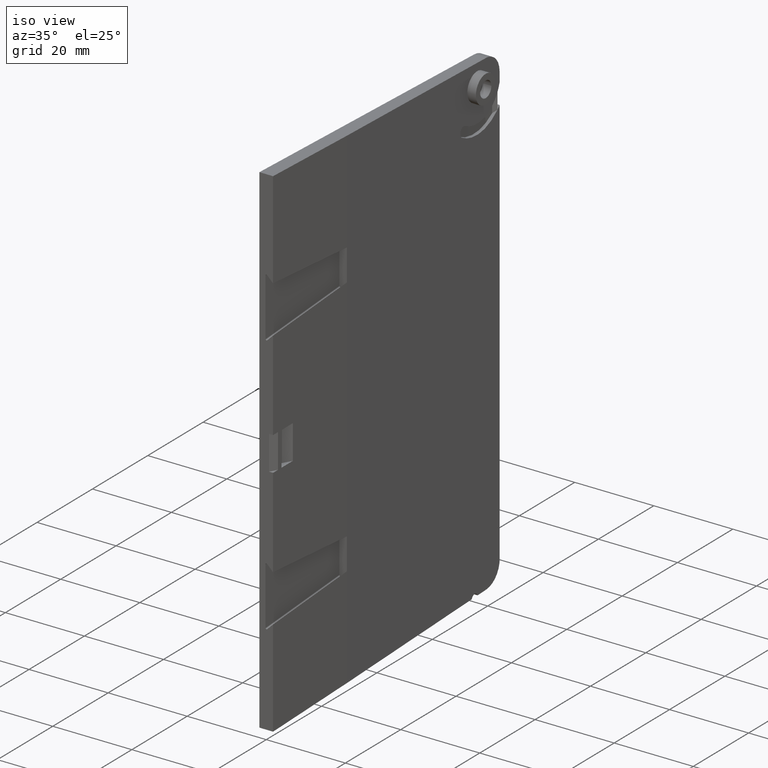
[diagram: clean part render]
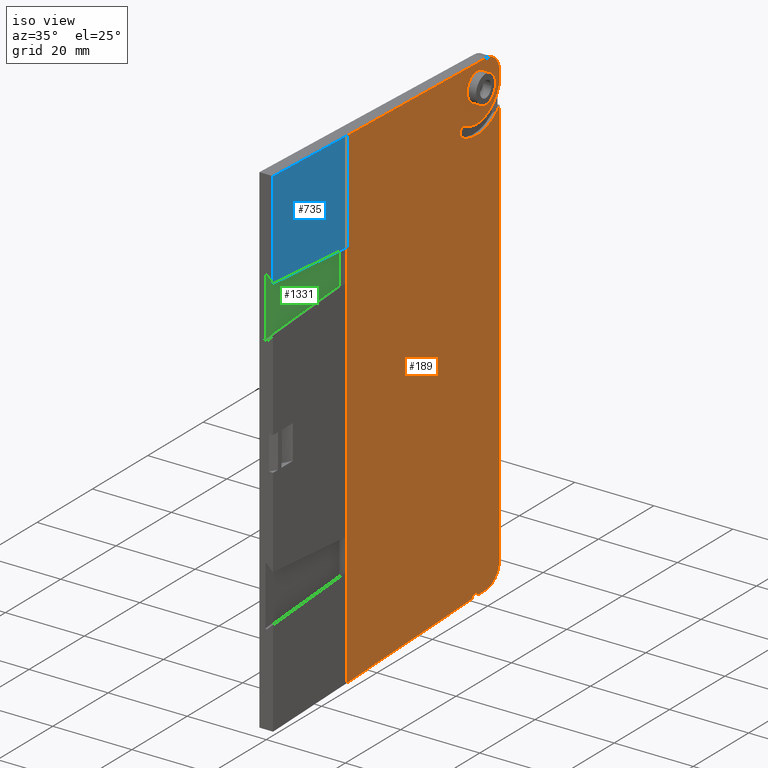
[diagram: same view with three faces highlighted in distinct colors, each labeled with its STEP entity id]
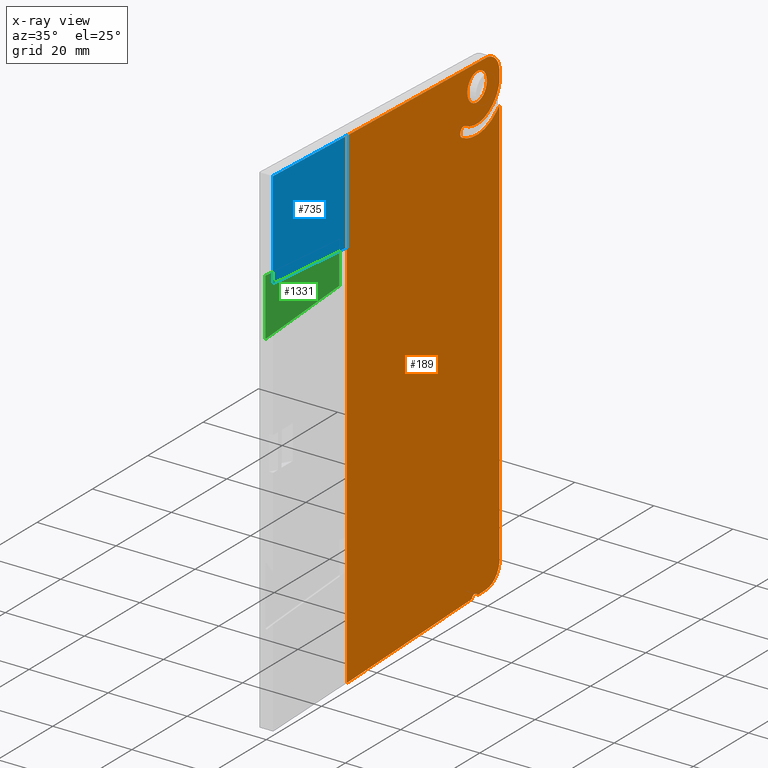
[diagram: x-ray of the same camera — body ghosted, the three highlighted faces saturated]
A machine part, iso view with three faces highlighted in distinct colors.
The next image is the same camera in x-ray (body ghosted, the three faces saturated) — at least one of them is partly hidden behind the body in this view.
Their STEP definitions:

[orange] entity #189 — the highlighted planar face has unit normal (-1, -0.0087, 0).
#2 = CARTESIAN_POINT ( 'NONE',  ( 0.04888656661871314300, 3.240182530498239000, 1.883828164917966700 ) ) ;
#3 = CARTESIAN_POINT ( 'NONE',  ( 0.05309887324728002800, 2.757499999999999400, 1.893881489732213200 ) ) ;
#20 = ORIENTED_EDGE ( 'NONE', *, *, #159, .F. ) ;
#22 = VECTOR ( 'NONE', #572, 39.37007874015748100 ) ;
#27 = EDGE_CURVE ( 'NONE', #1263, #976, #248, .T. ) ;
#29 = EDGE_CURVE ( 'NONE', #1047, #997, #347, .T. ) ;
#31 = VECTOR ( 'NONE', #567, 39.37007874015748100 ) ;
#34 = EDGE_LOOP ( 'NONE', ( #20 ) ) ;
#37 = CARTESIAN_POINT ( 'NONE',  ( 0.05048535175974582000, 3.056979899340500400, 2.393247909594224100 ) ) ;
#42 = DIRECTION ( 'NONE',  ( 0.0000000000000000000, 0.0000000000000000000, -1.000000000000000000 ) ) ;
#43 = CARTESIAN_POINT ( 'NONE',  ( 0.05309887324728002800, 2.757499999999999400, 1.893881489732213200 ) ) ;
#45 = CARTESIAN_POINT ( 'NONE',  ( 0.06800000000000006000, 1.049999999999999600, -1.142821581847729600 ) ) ;
#65 = EDGE_CURVE ( 'NONE', #494, #663, #1241, .T. ) ;
#67 = CARTESIAN_POINT ( 'NONE',  ( 0.04907205255496616100, 3.218927947445035200, 1.863326705647713900 ) ) ;
#74 =( BOUNDED_CURVE ( )  B_SPLINE_CURVE ( 3, ( #117, #113, #116, #118 ),
 .UNSPECIFIED., .F., .T. ) 
 B_SPLINE_CURVE_WITH_KNOTS ( ( 4, 4 ),
 ( 2.641205444217904500, 2.896641837762365500 ),
 .UNSPECIFIED. ) 
 CURVE ( )  GEOMETRIC_REPRESENTATION_ITEM ( )  RATIONAL_B_SPLINE_CURVE ( ( 1.000000000000000000, 0.9945700744788847900, 0.9945700744788847900, 1.000000000000000000 ) ) 
 REPRESENTATION_ITEM ( '' )  );
#79 = CARTESIAN_POINT ( 'NONE',  ( 0.04990887526799426400, 3.123037562361591100, 1.847913873380904200 ) ) ;
#81 = CARTESIAN_POINT ( 'NONE',  ( 0.05033883485180322400, 3.073769074042760800, 1.730274622845669800 ) ) ;
#93 = VERTEX_POINT ( 'NONE', #887 ) ;
#113 = CARTESIAN_POINT ( 'NONE',  ( 0.04895230219201217300, 3.232649979888425400, 2.048373532648020600 ) ) ;
#114 = CARTESIAN_POINT ( 'NONE',  ( 0.05285888438303416200, 2.784999999999998400, 2.184000000000000200 ) ) ;
#116 = CARTESIAN_POINT ( 'NONE',  ( 0.04886142148499687800, 3.243063877428106000, 2.075011841711472000 ) ) ;
#117 = CARTESIAN_POINT ( 'NONE',  ( 0.04907205255496614700, 3.218927947445035200, 2.023278620865959000 ) ) ;
#118 = CARTESIAN_POINT ( 'NONE',  ( 0.04880089086033145800, 3.250000000000000000, 2.102759615953644400 ) ) ;
#124 = ORIENTED_EDGE ( 'NONE', *, *, #339, .T. ) ;
#126 = CARTESIAN_POINT ( 'NONE',  ( 0.05041536140162176900, 3.064999999999999900, 1.903999999999999700 ) ) ;
#127 = ORIENTED_EDGE ( 'NONE', *, *, #1008, .T. ) ;
#128 = EDGE_LOOP ( 'NONE', ( #1247, #1233, #766, #1339, #984, #1336, #1242, #730, #546, #1067, #131, #1368, #127, #213, #124, #262, #1144, #1291 ) ) ;
#129 = DIRECTION ( 'NONE',  ( 0.0000000000000000000, 0.0000000000000000000, -1.000000000000000000 ) ) ;
#131 = ORIENTED_EDGE ( 'NONE', *, *, #1218, .T. ) ;
#137 = CARTESIAN_POINT ( 'NONE',  ( 0.05048535175974581300, 3.056979899340500900, -2.393247909594224500 ) ) ;
#140 = CARTESIAN_POINT ( 'NONE',  ( 0.04880089086033145800, 3.250000000000000000, -2.193369744190404500 ) ) ;
#142 = VERTEX_POINT ( 'NONE', #276 ) ;
#148 = CARTESIAN_POINT ( 'NONE',  ( 0.06800000000000013000, 1.050000000000000000, 2.500000000000000000 ) ) ;
#156 = CARTESIAN_POINT ( 'NONE',  ( 0.06800000000000013000, 1.050000000000000000, -2.463333192033665400 ) ) ;
#159 = EDGE_CURVE ( 'NONE', #1327, #1327, #1273, .T. ) ;
#165 = DIRECTION ( 'NONE',  ( 0.0000000000000000000, 0.0000000000000000000, -1.000000000000000000 ) ) ;
#166 = VECTOR ( 'NONE', #129, 39.37007874015748100 ) ;
#187 = CARTESIAN_POINT ( 'NONE',  ( 0.05041536140162176900, 3.064999999999999500, 2.184000000000000200 ) ) ;
#189 = ADVANCED_FACE ( 'NONE', ( #378, #1207 ), #1222, .F. ) ;
#210 = CARTESIAN_POINT ( 'NONE',  ( 0.06800000000000013000, 1.050000000000000000, 2.463333192033665000 ) ) ;
#213 = ORIENTED_EDGE ( 'NONE', *, *, #672, .T. ) ;
#214 = CARTESIAN_POINT ( 'NONE',  ( 0.04880089086033145800, 3.250000000000000400, 1.894863354103982800 ) ) ;
#229 = CARTESIAN_POINT ( 'NONE',  ( 0.05041536140162176900, 3.064999999999999900, 2.464000000000001300 ) ) ;
#234 = VERTEX_POINT ( 'NONE', #1195 ) ;
#242 = VERTEX_POINT ( 'NONE', #1200 ) ;
#248 = LINE ( 'NONE', #452, #650 ) ;
#262 = ORIENTED_EDGE ( 'NONE', *, *, #27, .T. ) ;
#276 = CARTESIAN_POINT ( 'NONE',  ( 0.04907205255496614700, 3.218927947445035200, 2.023278620865959000 ) ) ;
#277 = LINE ( 'NONE', #336, #296 ) ;
#286 =( BOUNDED_CURVE ( )  B_SPLINE_CURVE ( 3, ( #1065, #1322, #295, #37 ),
 .UNSPECIFIED., .F., .T. ) 
 B_SPLINE_CURVE_WITH_KNOTS ( ( 4, 4 ),
 ( 3.141592653589793100, 4.677482395344801700 ),
 .UNSPECIFIED. ) 
 CURVE ( )  GEOMETRIC_REPRESENTATION_ITEM ( )  RATIONAL_B_SPLINE_CURVE ( ( 1.000000000000000000, 0.8128932002257676100, 0.8128932002257676100, 1.000000000000000000 ) ) 
 REPRESENTATION_ITEM ( '' )  );
#295 = CARTESIAN_POINT ( 'NONE',  ( 0.04949161747277635400, 3.170850569871544800, 2.389271458156738200 ) ) ;
#296 = VECTOR ( 'NONE', #320, 39.37007874015748100 ) ;
#304 = CARTESIAN_POINT ( 'NONE',  ( 0.06799999999999968600, 1.050000000000000000, 1.065000000000000200 ) ) ;
#316 = DIRECTION ( 'NONE',  ( -1.271471805561825300E-016, 0.0000000000000000000, 1.000000000000000000 ) ) ;
#320 = DIRECTION ( 'NONE',  ( 0.0000000000000000000, 0.0000000000000000000, -1.000000000000000000 ) ) ;
#327 = VECTOR ( 'NONE', #165, 39.37007874015748100 ) ;
#336 = CARTESIAN_POINT ( 'NONE',  ( 0.06800000000000013000, 1.050000000000000000, 2.500000000000000000 ) ) ;
#338 =( BOUNDED_CURVE ( )  B_SPLINE_CURVE ( 3, ( #470, #490, #493, #497 ),
 .UNSPECIFIED., .F., .F. ) 
 B_SPLINE_CURVE_WITH_KNOTS ( ( 4, 4 ),
 ( 1.605702911834787400, 3.141592653589793100 ),
 .UNSPECIFIED. ) 
 CURVE ( )  GEOMETRIC_REPRESENTATION_ITEM ( )  RATIONAL_B_SPLINE_CURVE ( ( 1.000000000000000000, 0.8128932002257683900, 0.8128932002257683900, 1.000000000000000000 ) ) 
 REPRESENTATION_ITEM ( '' )  );
#339 = EDGE_CURVE ( 'NONE', #1283, #1263, #1157, .T. ) ;
#347 = LINE ( 'NONE', #461, #327 ) ;
#372 = CARTESIAN_POINT ( 'NONE',  ( 0.06799999999999990800, 1.050000000000000000, 1.142821581847730100 ) ) ;
#373 = VERTEX_POINT ( 'NONE', #985 ) ;
#378 = FACE_OUTER_BOUND ( 'NONE', #128, .T. ) ;
#438 = LINE ( 'NONE', #148, #166 ) ;
#446 = CARTESIAN_POINT ( 'NONE',  ( 0.06800000000000013000, 1.050000000000000000, 2.500000000000000000 ) ) ;
#452 = CARTESIAN_POINT ( 'NONE',  ( 0.06648938665666362400, 1.223099143880260100, -2.457288436731003900 ) ) ;
#454 = CARTESIAN_POINT ( 'NONE',  ( 0.04880089086033145800, 3.250000000000000000, 2.193369744190405000 ) ) ;
#461 = CARTESIAN_POINT ( 'NONE',  ( 0.04880089086033145800, 3.250000000000000000, 2.500000000000000000 ) ) ;
#467 = CARTESIAN_POINT ( 'NONE',  ( 0.05156633806404179600, 2.933111137922947100, -2.397573502058914800 ) ) ;
#470 = CARTESIAN_POINT ( 'NONE',  ( 0.05048535175974581300, 3.056979899340500900, -2.393247909594224500 ) ) ;
#471 = VERTEX_POINT ( 'NONE', #156 ) ;
#473 = DIRECTION ( 'NONE',  ( -0.008721219933185274400, 0.9993528196245630200, 0.03489816945503758400 ) ) ;
#490 = CARTESIAN_POINT ( 'NONE',  ( 0.04949161747277634700, 3.170850569871544300, -2.389271458156738200 ) ) ;
#493 = CARTESIAN_POINT ( 'NONE',  ( 0.04880089086033145800, 3.250000000000000000, -2.307309823939472700 ) ) ;
#494 = VERTEX_POINT ( 'NONE', #210 ) ;
#497 = CARTESIAN_POINT ( 'NONE',  ( 0.04880089086033145800, 3.250000000000000000, -2.193369744190404500 ) ) ;
#509 = CARTESIAN_POINT ( 'NONE',  ( 0.05230920796579205400, 2.847986678659690400, -2.400546113678957200 ) ) ;
#531 = LINE ( 'NONE', #839, #826 ) ;
#546 = ORIENTED_EDGE ( 'NONE', *, *, #65, .T. ) ;
#552 = VECTOR ( 'NONE', #316, 39.37007874015748100 ) ;
#557 = CARTESIAN_POINT ( 'NONE',  ( 0.06801115971207838400, 1.048721223657121900, 2.463377847887565900 ) ) ;
#558 = CARTESIAN_POINT ( 'NONE',  ( 0.05285888438303416900, 2.784999999999998400, 2.464000000000001300 ) ) ;
#567 = DIRECTION ( 'NONE',  ( -0.008721219933185274400, 0.9993528196245630200, -0.03489816945503758400 ) ) ;
#572 = DIRECTION ( 'NONE',  ( 0.0000000000000000000, 0.0000000000000000000, -1.000000000000000000 ) ) ;
#585 =( BOUNDED_CURVE ( )  B_SPLINE_CURVE ( 3, ( #67, #81, #979, #982 ),
 .UNSPECIFIED., .F., .F. ) 
 B_SPLINE_CURVE_WITH_KNOTS ( ( 4, 4 ),
 ( 3.970479963693305700, 5.235987755982989700 ),
 .UNSPECIFIED. ) 
 CURVE ( )  GEOMETRIC_REPRESENTATION_ITEM ( )  RATIONAL_B_SPLINE_CURVE ( ( 1.000000000000000000, 0.8709346685796749400, 0.8709346685796749400, 1.000000000000000000 ) ) 
 REPRESENTATION_ITEM ( '' )  );
#597 = EDGE_CURVE ( 'NONE', #242, #234, #1026, .T. ) ;
#599 = CARTESIAN_POINT ( 'NONE',  ( 0.04907205255496616100, 3.218927947445035200, 1.863326705647713900 ) ) ;
#619 = VECTOR ( 'NONE', #42, 39.37007874015748100 ) ;
#626 = CARTESIAN_POINT ( 'NONE',  ( 0.04880089086033145800, 3.250000000000000000, 2.102759615953644400 ) ) ;
#628 = VERTEX_POINT ( 'NONE', #45 ) ;
#638 =( BOUNDED_CURVE ( )  B_SPLINE_CURVE ( 3, ( #870, #2, #846, #1373 ),
 .UNSPECIFIED., .F., .T. ) 
 B_SPLINE_CURVE_WITH_KNOTS ( ( 4, 4 ),
 ( 3.868660685999078600, 3.970479963693305700 ),
 .UNSPECIFIED. ) 
 CURVE ( )  GEOMETRIC_REPRESENTATION_ITEM ( )  RATIONAL_B_SPLINE_CURVE ( ( 1.000000000000000000, 0.9991362561353180900, 0.9991362561353180900, 1.000000000000000000 ) ) 
 REPRESENTATION_ITEM ( '' )  );
#650 = VECTOR ( 'NONE', #473, 39.37007874015748100 ) ;
#661 = EDGE_CURVE ( 'NONE', #1047, #1345, #638, .T. ) ;
#663 = VERTEX_POINT ( 'NONE', #693 ) ;
#664 = EDGE_CURVE ( 'NONE', #1249, #373, #286, .T. ) ;
#672 = EDGE_CURVE ( 'NONE', #471, #1283, #531, .T. ) ;
#676 = CARTESIAN_POINT ( 'NONE',  ( 0.05041536140162176900, 3.064999999999999500, 2.184000000000000200 ) ) ;
#693 = CARTESIAN_POINT ( 'NONE',  ( 0.06799999999999989400, 1.050000000000000000, 1.457178418152269800 ) ) ;
#713 = EDGE_CURVE ( 'NONE', #1249, #1360, #831, .T. ) ;
#717 = CARTESIAN_POINT ( 'NONE',  ( 0.04880089086033145800, 3.250000000000000000, 2.500000000000000000 ) ) ;
#730 = ORIENTED_EDGE ( 'NONE', *, *, #1325, .F. ) ;
#762 = LINE ( 'NONE', #557, #31 ) ;
#766 = ORIENTED_EDGE ( 'NONE', *, *, #597, .T. ) ;
#774 = CARTESIAN_POINT ( 'NONE',  ( 0.05429098555704443800, 2.620897459621557500, 1.857278949353770200 ) ) ;
#779 = VECTOR ( 'NONE', #833, 39.37007874015748100 ) ;
#800 = CARTESIAN_POINT ( 'NONE',  ( 0.05385464216750650300, 2.670897459621557300, 1.943881489732211600 ) ) ;
#825 = EDGE_CURVE ( 'NONE', #1345, #242, #585, .T. ) ;
#826 = VECTOR ( 'NONE', #983, 39.37007874015748100 ) ;
#828 = CARTESIAN_POINT ( 'NONE',  ( 0.06799999999999996300, 1.050000000000000000, -1.065000000000000200 ) ) ;
#831 = LINE ( 'NONE', #717, #22 ) ;
#833 = DIRECTION ( 'NONE',  ( -1.089832976195850200E-016, 0.0000000000000000000, 1.000000000000000000 ) ) ;
#839 = CARTESIAN_POINT ( 'NONE',  ( 0.06648938665666362400, 1.223099143880260100, -2.457288436731003900 ) ) ;
#846 = CARTESIAN_POINT ( 'NONE',  ( 0.04897703198916673200, 3.229816225814513800, 1.873306861054216300 ) ) ;
#858 =( BOUNDED_CURVE ( )  B_SPLINE_CURVE ( 3, ( #3, #938, #79, #955 ),
 .UNSPECIFIED., .F., .F. ) 
 B_SPLINE_CURVE_WITH_KNOTS ( ( 4, 4 ),
 ( 1.047197551196598500, 2.641205444217904500 ),
 .UNSPECIFIED. ) 
 CURVE ( )  GEOMETRIC_REPRESENTATION_ITEM ( )  RATIONAL_B_SPLINE_CURVE ( ( 1.000000000000000000, 0.7992352109442892900, 0.7992352109442892900, 1.000000000000000000 ) ) 
 REPRESENTATION_ITEM ( '' )  );
#864 = LINE ( 'NONE', #304, #552 ) ;
#870 = CARTESIAN_POINT ( 'NONE',  ( 0.04880089086033145800, 3.250000000000000400, 1.894863354103982800 ) ) ;
#872 = EDGE_CURVE ( 'NONE', #93, #628, #897, .T. ) ;
#875 = EDGE_CURVE ( 'NONE', #234, #142, #858, .T. ) ;
#887 = CARTESIAN_POINT ( 'NONE',  ( 0.06800000000000006000, 1.050000000000000000, -1.457178418152269800 ) ) ;
#897 = LINE ( 'NONE', #828, #779 ) ;
#938 = CARTESIAN_POINT ( 'NONE',  ( 0.05158832275194427700, 2.930591942212689400, 1.793946810301160900 ) ) ;
#943 = CARTESIAN_POINT ( 'NONE',  ( 0.05156633806404179600, 2.933111137922947100, -2.397573502058914800 ) ) ;
#948 = AXIS2_PLACEMENT_3D ( 'NONE', #1225, #1290, #1208 ) ;
#955 = CARTESIAN_POINT ( 'NONE',  ( 0.04907205255496614700, 3.218927947445035200, 2.023278620865959000 ) ) ;
#957 = EDGE_CURVE ( 'NONE', #142, #1360, #74, .T. ) ;
#976 = VERTEX_POINT ( 'NONE', #137 ) ;
#979 = CARTESIAN_POINT ( 'NONE',  ( 0.05204702424222382900, 2.878029957629250300, 1.708823432411625200 ) ) ;
#982 = CARTESIAN_POINT ( 'NONE',  ( 0.05353521663681795600, 2.707499999999998200, 1.807278949353769500 ) ) ;
#983 = DIRECTION ( 'NONE',  ( -0.008721219933185274400, 0.9993528196245630200, 0.03489816945503758400 ) ) ;
#984 = ORIENTED_EDGE ( 'NONE', *, *, #957, .T. ) ;
#985 = CARTESIAN_POINT ( 'NONE',  ( 0.05048535175974582000, 3.056979899340500400, 2.393247909594224100 ) ) ;
#990 = CARTESIAN_POINT ( 'NONE',  ( 0.05353521663681795600, 2.707499999999998200, 1.807278949353769500 ) ) ;
#996 = CARTESIAN_POINT ( 'NONE',  ( 0.05172702589232007500, 2.914698136588330900, -2.349211783273514000 ) ) ;
#997 = VERTEX_POINT ( 'NONE', #140 ) ;
#1008 = EDGE_CURVE ( 'NONE', #93, #471, #438, .T. ) ;
#1026 =( BOUNDED_CURVE ( )  B_SPLINE_CURVE ( 3, ( #990, #774, #800, #43 ),
 .UNSPECIFIED., .F., .F. ) 
 B_SPLINE_CURVE_WITH_KNOTS ( ( 4, 4 ),
 ( 5.235987755983009300, 8.377580409572777500 ),
 .UNSPECIFIED. ) 
 CURVE ( )  GEOMETRIC_REPRESENTATION_ITEM ( )  RATIONAL_B_SPLINE_CURVE ( ( 1.000000000000000000, 0.3333333333333417000, 0.3333333333333417000, 1.000000000000000000 ) ) 
 REPRESENTATION_ITEM ( '' )  );
#1035 = CARTESIAN_POINT ( 'NONE',  ( 0.05217835202844396000, 2.862981283881814900, -2.351017775565716700 ) ) ;
#1047 = VERTEX_POINT ( 'NONE', #214 ) ;
#1065 = CARTESIAN_POINT ( 'NONE',  ( 0.04880089086033145800, 3.250000000000000000, 2.193369744190405000 ) ) ;
#1067 = ORIENTED_EDGE ( 'NONE', *, *, #1173, .F. ) ;
#1120 = CARTESIAN_POINT ( 'NONE',  ( 0.05230920796579205400, 2.847986678659690400, -2.400546113678957200 ) ) ;
#1144 = ORIENTED_EDGE ( 'NONE', *, *, #1266, .T. ) ;
#1157 =( BOUNDED_CURVE ( )  B_SPLINE_CURVE ( 3, ( #1120, #1035, #996, #943 ),
 .UNSPECIFIED., .F., .F. ) 
 B_SPLINE_CURVE_WITH_KNOTS ( ( 4, 4 ),
 ( 3.435568636740234300, 5.919396153949366900 ),
 .UNSPECIFIED. ) 
 CURVE ( )  GEOMETRIC_REPRESENTATION_ITEM ( )  RATIONAL_B_SPLINE_CURVE ( ( 1.000000000000000000, 0.5486571256654324500, 0.5486571256654324500, 1.000000000000000000 ) ) 
 REPRESENTATION_ITEM ( '' )  );
#1173 = EDGE_CURVE ( 'NONE', #1219, #663, #864, .T. ) ;
#1195 = CARTESIAN_POINT ( 'NONE',  ( 0.05309887324728002800, 2.757499999999999400, 1.893881489732213200 ) ) ;
#1200 = CARTESIAN_POINT ( 'NONE',  ( 0.05353521663681795600, 2.707499999999998200, 1.807278949353769500 ) ) ;
#1207 = FACE_BOUND ( 'NONE', #34, .T. ) ;
#1208 = DIRECTION ( 'NONE',  ( 0.008726535498373632800, -0.9999619230641712000, 0.0000000000000000000 ) ) ;
#1218 = EDGE_CURVE ( 'NONE', #1219, #628, #277, .T. ) ;
#1219 = VERTEX_POINT ( 'NONE', #372 ) ;
#1222 = PLANE ( 'NONE',  #948 ) ;
#1225 = CARTESIAN_POINT ( 'NONE',  ( 0.06800000000000013000, 1.050000000000000000, 2.500000000000000000 ) ) ;
#1233 = ORIENTED_EDGE ( 'NONE', *, *, #825, .T. ) ;
#1241 = LINE ( 'NONE', #446, #619 ) ;
#1242 = ORIENTED_EDGE ( 'NONE', *, *, #664, .T. ) ;
#1247 = ORIENTED_EDGE ( 'NONE', *, *, #661, .T. ) ;
#1249 = VERTEX_POINT ( 'NONE', #454 ) ;
#1263 = VERTEX_POINT ( 'NONE', #467 ) ;
#1266 = EDGE_CURVE ( 'NONE', #976, #997, #338, .T. ) ;
#1273 =( BOUNDED_CURVE ( )  B_SPLINE_CURVE ( 3, ( #187, #229, #558, #114, #1317, #126, #1324 ),
 .UNSPECIFIED., .T., .F. ) 
 B_SPLINE_CURVE_WITH_KNOTS ( ( 4, 3, 4 ),
 ( 0.0000000000000000000, 3.141592653589793100, 6.283185307179586200 ),
 .UNSPECIFIED. ) 
 CURVE ( )  GEOMETRIC_REPRESENTATION_ITEM ( )  RATIONAL_B_SPLINE_CURVE ( ( 1.000000000000000000, 0.3333333333333333700, 0.3333333333333333700, 1.000000000000000000, 0.3333333333333333700, 0.3333333333333333700, 1.000000000000000000 ) ) 
 REPRESENTATION_ITEM ( '' )  );
#1283 = VERTEX_POINT ( 'NONE', #509 ) ;
#1290 = DIRECTION ( 'NONE',  ( -0.9999619230641713100, -0.008726535498373634600, 0.0000000000000000000 ) ) ;
#1291 = ORIENTED_EDGE ( 'NONE', *, *, #29, .F. ) ;
#1317 = CARTESIAN_POINT ( 'NONE',  ( 0.05285888438303416900, 2.784999999999998400, 1.903999999999999700 ) ) ;
#1322 = CARTESIAN_POINT ( 'NONE',  ( 0.04880089086033144500, 3.250000000000000000, 2.307309823939473600 ) ) ;
#1324 = CARTESIAN_POINT ( 'NONE',  ( 0.05041536140162176900, 3.064999999999999500, 2.184000000000000200 ) ) ;
#1325 = EDGE_CURVE ( 'NONE', #494, #373, #762, .T. ) ;
#1327 = VERTEX_POINT ( 'NONE', #676 ) ;
#1336 = ORIENTED_EDGE ( 'NONE', *, *, #713, .F. ) ;
#1339 = ORIENTED_EDGE ( 'NONE', *, *, #875, .T. ) ;
#1345 = VERTEX_POINT ( 'NONE', #599 ) ;
#1360 = VERTEX_POINT ( 'NONE', #626 ) ;
#1368 = ORIENTED_EDGE ( 'NONE', *, *, #872, .F. ) ;
#1373 = CARTESIAN_POINT ( 'NONE',  ( 0.04907205255496616100, 3.218927947445035200, 1.863326705647713900 ) ) ;

[blue] entity #735 — the highlighted planar face has unit normal (-1, 0, 0).
#42 = DIRECTION ( 'NONE',  ( 0.0000000000000000000, 0.0000000000000000000, -1.000000000000000000 ) ) ;
#65 = EDGE_CURVE ( 'NONE', #494, #663, #1241, .T. ) ;
#106 = CARTESIAN_POINT ( 'NONE',  ( 0.06800000000000000500, 2.731847993664263200E-016, 1.534999999999999700 ) ) ;
#110 = DIRECTION ( 'NONE',  ( -1.216239079820384600E-016, -0.9972646886342373400, 0.07391306246704768000 ) ) ;
#195 = CARTESIAN_POINT ( 'NONE',  ( 0.06799999999999963000, 2.731847993664263200E-016, 1.534999999999999900 ) ) ;
#210 = CARTESIAN_POINT ( 'NONE',  ( 0.06800000000000013000, 1.050000000000000000, 2.463333192033665000 ) ) ;
#249 = CARTESIAN_POINT ( 'NONE',  ( 0.06800000000000000500, 2.731847993664263200E-016, 2.500000000000000000 ) ) ;
#255 = DIRECTION ( 'NONE',  ( 0.0000000000000000000, 0.0000000000000000000, -1.000000000000000000 ) ) ;
#301 = CARTESIAN_POINT ( 'NONE',  ( 0.06800000000000000500, 2.731847993664263200E-016, 2.500000000000000000 ) ) ;
#303 = DIRECTION ( 'NONE',  ( 1.218832065035082800E-016, 0.9993908270190957600, -0.03489949670250104600 ) ) ;
#386 = CARTESIAN_POINT ( 'NONE',  ( 0.06800000000000000500, 2.731847993664263200E-016, 2.500000000000000000 ) ) ;
#446 = CARTESIAN_POINT ( 'NONE',  ( 0.06800000000000013000, 1.050000000000000000, 2.500000000000000000 ) ) ;
#458 = VECTOR ( 'NONE', #255, 39.37007874015748100 ) ;
#494 = VERTEX_POINT ( 'NONE', #210 ) ;
#503 = ORIENTED_EDGE ( 'NONE', *, *, #65, .F. ) ;
#574 = DIRECTION ( 'NONE',  ( -1.000000000000000000, 1.219574997171544800E-016, 0.0000000000000000000 ) ) ;
#578 = DIRECTION ( 'NONE',  ( -1.219574997171544800E-016, -1.000000000000000000, 0.0000000000000000000 ) ) ;
#619 = VECTOR ( 'NONE', #42, 39.37007874015748100 ) ;
#662 = ORIENTED_EDGE ( 'NONE', *, *, #814, .F. ) ;
#663 = VERTEX_POINT ( 'NONE', #693 ) ;
#692 = LINE ( 'NONE', #249, #458 ) ;
#693 = CARTESIAN_POINT ( 'NONE',  ( 0.06799999999999989400, 1.050000000000000000, 1.457178418152269800 ) ) ;
#710 = CARTESIAN_POINT ( 'NONE',  ( 0.06800000000000000500, 2.731847993664263200E-016, 2.500000000000000000 ) ) ;
#715 = PLANE ( 'NONE',  #731 ) ;
#721 = VERTEX_POINT ( 'NONE', #710 ) ;
#731 = AXIS2_PLACEMENT_3D ( 'NONE', #386, #574, #578 ) ;
#735 = ADVANCED_FACE ( 'NONE', ( #1310 ), #715, .F. ) ;
#739 = EDGE_LOOP ( 'NONE', ( #1088, #662, #503, #1001 ) ) ;
#814 = EDGE_CURVE ( 'NONE', #663, #1032, #821, .T. ) ;
#821 = LINE ( 'NONE', #106, #1156 ) ;
#1001 = ORIENTED_EDGE ( 'NONE', *, *, #1161, .F. ) ;
#1032 = VERTEX_POINT ( 'NONE', #195 ) ;
#1036 = LINE ( 'NONE', #301, #1216 ) ;
#1080 = EDGE_CURVE ( 'NONE', #721, #1032, #692, .T. ) ;
#1088 = ORIENTED_EDGE ( 'NONE', *, *, #1080, .T. ) ;
#1156 = VECTOR ( 'NONE', #110, 39.37007874015748100 ) ;
#1161 = EDGE_CURVE ( 'NONE', #721, #494, #1036, .T. ) ;
#1216 = VECTOR ( 'NONE', #303, 39.37007874015748100 ) ;
#1241 = LINE ( 'NONE', #446, #619 ) ;
#1310 = FACE_OUTER_BOUND ( 'NONE', #739, .T. ) ;

[green] entity #1331 — the highlighted planar face has unit normal (-1, 0, -0).
#35 = DIRECTION ( 'NONE',  ( -9.159643460965900300E-018, -0.9972646886342373400, 0.07391306246704758300 ) ) ;
#73 = EDGE_CURVE ( 'NONE', #647, #449, #723, .T. ) ;
#121 = EDGE_CURVE ( 'NONE', #449, #759, #716, .T. ) ;
#135 = EDGE_CURVE ( 'NONE', #759, #749, #986, .T. ) ;
#168 = AXIS2_PLACEMENT_3D ( 'NONE', #588, #596, #598 ) ;
#174 = CARTESIAN_POINT ( 'NONE',  ( -0.006999999999999987100, 1.050000000000000000, 1.610000000000000100 ) ) ;
#181 = DIRECTION ( 'NONE',  ( 1.239245561642055000E-016, 0.0000000000000000000, -1.000000000000000000 ) ) ;
#237 = ORIENTED_EDGE ( 'NONE', *, *, #73, .T. ) ;
#299 = DIRECTION ( 'NONE',  ( -9.159643460965900300E-018, 0.9972646886342373400, 0.07391306246704751300 ) ) ;
#305 = CARTESIAN_POINT ( 'NONE',  ( -0.006999999999999994900, 2.731847993664263200E-016, 1.610000000000000100 ) ) ;
#312 = CARTESIAN_POINT ( 'NONE',  ( -0.006999999999999927300, 1.048219031189849600, 1.091851127460374200 ) ) ;
#362 = CARTESIAN_POINT ( 'NONE',  ( -0.006999999999999918600, 1.050000000000000000, 1.091983125374686100 ) ) ;
#422 = VECTOR ( 'NONE', #299, 39.37007874015748100 ) ;
#449 = VERTEX_POINT ( 'NONE', #1379 ) ;
#520 = EDGE_CURVE ( 'NONE', #647, #749, #920, .T. ) ;
#539 = ORIENTED_EDGE ( 'NONE', *, *, #520, .F. ) ;
#588 = CARTESIAN_POINT ( 'NONE',  ( -0.006999999999999987100, 1.050000000000000000, 1.610000000000000100 ) ) ;
#593 = PLANE ( 'NONE',  #168 ) ;
#596 = DIRECTION ( 'NONE',  ( -1.000000000000000000, 0.0000000000000000000, -1.239245561642055000E-016 ) ) ;
#598 = DIRECTION ( 'NONE',  ( -1.239245561642055000E-016, 0.0000000000000000000, 1.000000000000000000 ) ) ;
#641 = CARTESIAN_POINT ( 'NONE',  ( -0.006999999999999918600, 2.731847993664263200E-016, 1.014161543526956400 ) ) ;
#647 = VERTEX_POINT ( 'NONE', #838 ) ;
#700 = FACE_OUTER_BOUND ( 'NONE', #961, .T. ) ;
#716 = LINE ( 'NONE', #305, #1253 ) ;
#719 = ORIENTED_EDGE ( 'NONE', *, *, #135, .T. ) ;
#723 = LINE ( 'NONE', #1139, #1146 ) ;
#749 = VERTEX_POINT ( 'NONE', #362 ) ;
#759 = VERTEX_POINT ( 'NONE', #641 ) ;
#838 = CARTESIAN_POINT ( 'NONE',  ( -0.006999999999999969800, 1.050000000000000000, 1.508016874625314000 ) ) ;
#916 = DIRECTION ( 'NONE',  ( 1.239245561642055000E-016, 0.0000000000000000000, -1.000000000000000000 ) ) ;
#920 = LINE ( 'NONE', #174, #989 ) ;
#954 = ORIENTED_EDGE ( 'NONE', *, *, #121, .T. ) ;
#961 = EDGE_LOOP ( 'NONE', ( #539, #237, #954, #719 ) ) ;
#986 = LINE ( 'NONE', #312, #422 ) ;
#989 = VECTOR ( 'NONE', #916, 39.37007874015748100 ) ;
#1139 = CARTESIAN_POINT ( 'NONE',  ( -0.006999999999999978500, -0.001780968810150324400, 1.585970454387355600 ) ) ;
#1146 = VECTOR ( 'NONE', #35, 39.37007874015748100 ) ;
#1253 = VECTOR ( 'NONE', #181, 39.37007874015748100 ) ;
#1331 = ADVANCED_FACE ( 'NONE', ( #700 ), #593, .F. ) ;
#1379 = CARTESIAN_POINT ( 'NONE',  ( -0.006999999999999987100, 2.731847993664263200E-016, 1.585838456473043900 ) ) ;